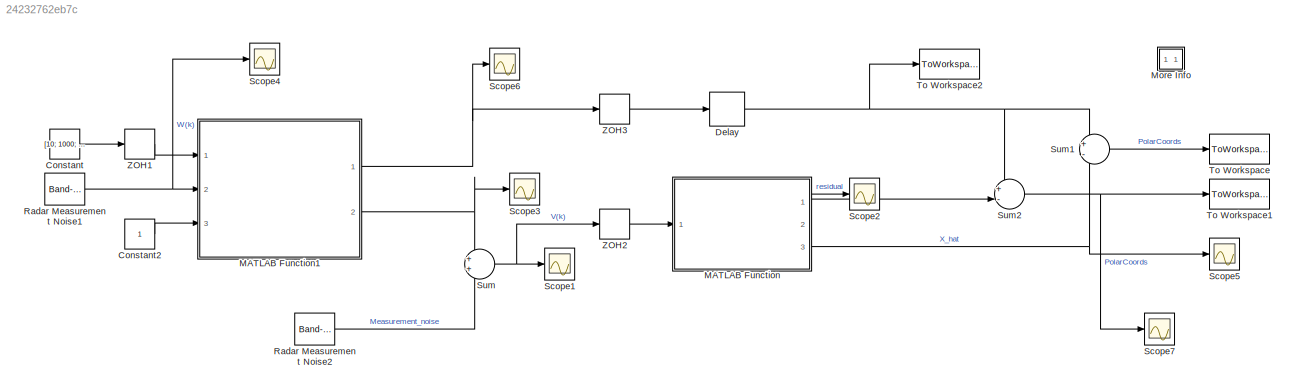
MODEL slx_24232762eb7c
KIND model
CONFIG AbsTol = 1e-6
CONFIG EnableMultiTasking = off
CONFIG FixedStep = 0.1
CONFIG MaxStep = 0.1
CONFIG MinStep = auto
CONFIG RelTol = 1e-3
CONFIG SampleTimeConstraint = Unconstrained
CONFIG Solver = ode5
CONFIG SolverName = ode5
CONFIG StartFcn = clear radarLogsOut
CONFIG StartTime = 0.0
CONFIG StopFcn = aero_radplot;
CONFIG StopTime = 1800
WORKSPACE source: MATLAB code (in-file)
WORKSPACE g = 32.2
WORKSPACE tauc = 5
WORKSPACE tauT = 4
WORKSPACE Speed = 400
WORKSPACE deltat = 1
BLOCK [Constant] Constant
  SampleTime = deltat
  Value = [10; 1000; 0; 10; 0.2; 15; 0; 0]
BLOCK [Constant] Constant2
  SampleTime = 0.1
BLOCK [Delay] Delay
  DelayLength = 1
  InitialCondition = 0
  InputPortMap = u0
  Ports = [1, 1]
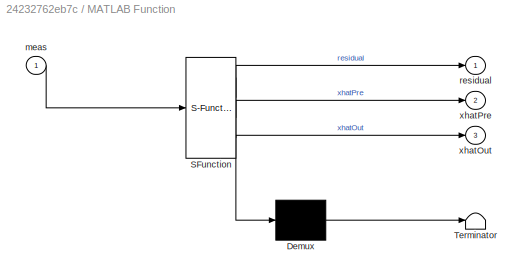
BLOCK [SubSystem] MATLAB Function
  ErrorFcn = Stateflow.Translate.translate
  PermitHierarchicalResolution = ExplicitOnly
  Ports = [1, 3]
  RequestExecContextInheritance = off
  SFBlockType = MATLAB Function
  TreatAsAtomicUnit = on
BLOCK [Demux] MATLAB Function/ Demux 
  Outputs = 1
  Ports = [1, 1]
BLOCK [S-Function] MATLAB Function/ SFunction 
  EnableBusSupport = on
  FunctionName = sf_sfun
  PortCounts = [1 4]
  Ports = [1, 4]
  SFcnIsStateOwnerBlock = off
  SFunctionDeploymentMode = off
  Tag = Stateflow S-Function ekf6_grp5 2
BLOCK [Terminator] MATLAB Function/ Terminator 
BLOCK [Inport] MATLAB Function/meas
  IconDisplay = Port number
BLOCK [Outport] MATLAB Function/residual
  IconDisplay = Port number
BLOCK [Outport] MATLAB Function/xhatOut
  IconDisplay = Port number
  Port = 3
BLOCK [Outport] MATLAB Function/xhatPre
  IconDisplay = Port number
  Port = 2
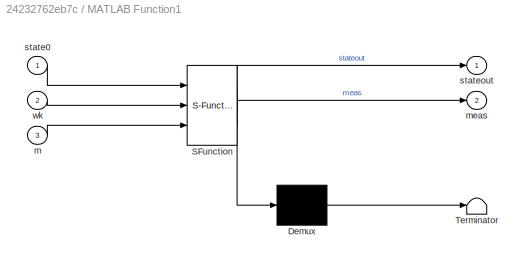
BLOCK [SubSystem] MATLAB Function1
  ErrorFcn = Stateflow.Translate.translate
  PermitHierarchicalResolution = ExplicitOnly
  Ports = [3, 2]
  RequestExecContextInheritance = off
  SFBlockType = MATLAB Function
  TreatAsAtomicUnit = on
BLOCK [Demux] MATLAB Function1/ Demux 
  Outputs = 1
  Ports = [1, 1]
BLOCK [S-Function] MATLAB Function1/ SFunction 
  EnableBusSupport = on
  FunctionName = sf_sfun
  PortCounts = [3 3]
  Ports = [3, 3]
  SFcnIsStateOwnerBlock = off
  SFunctionDeploymentMode = off
  Tag = Stateflow S-Function ekf6_grp5 1
BLOCK [Terminator] MATLAB Function1/ Terminator 
BLOCK [Inport] MATLAB Function1/m
  IconDisplay = Port number
  Port = 3
BLOCK [Outport] MATLAB Function1/meas
  IconDisplay = Port number
  Port = 2
BLOCK [Inport] MATLAB Function1/state0
  IconDisplay = Port number
BLOCK [Outport] MATLAB Function1/stateout
  IconDisplay = Port number
BLOCK [Inport] MATLAB Function1/wk
  IconDisplay = Port number
  Port = 2
BLOCK [SubSystem] More Info
  OpenFcn = showdemo(bdroot(gcs))
  Ports = []
  RequestExecContextInheritance = off
BLOCK [Reference] Radar Measurement Noise1  REF=simulink/Sources/Band-Limited
White Noise
  Ports = [0, 1]
  SourceBlock = simulink/Sources/Band-Limited\nWhite Noise
  SourceProductBaseCode = SL
  SourceProductName = Simulink
  SourceType = Band-Limited White Noise.
BLOCK [Reference] Radar Measurement Noise2  REF=simulink/Sources/Band-Limited
White Noise
  Ports = [0, 1]
  SourceBlock = simulink/Sources/Band-Limited\nWhite Noise
  SourceProductBaseCode = SL
  SourceProductName = Simulink
  SourceType = Band-Limited White Noise.
BLOCK [Scope] Scope1
  Floating = off
  NumInputPorts = 1
  Ports = [1]
  ScopeSpecificationString = Simulink.scopes.TimeScopeBlockCfg('CurrentConfiguration', extmgr.ConfigurationSet(extmgr.Configuration('Core','General UI',true),extmgr.Configuration('Core','Source UI',true),extmgr.Configuration('Sources','WiredSimulink',true,'DataLoggingVariableName','ScopeData1'),extmgr.Configuration('Visuals','Time Domain',true,'SerializedDisplays',{struct('MinYLimReal','-265.27779','MaxYLimReal','1447.96767',...<+1463ch>
BLOCK [Scope] Scope2
  Floating = off
  NumInputPorts = 1
  Ports = [1]
  ScopeSpecificationString = Simulink.scopes.TimeScopeBlockCfg('CurrentConfiguration', extmgr.ConfigurationSet(extmgr.Configuration('Core','General UI',true),extmgr.Configuration('Core','Source UI',true),extmgr.Configuration('Sources','WiredSimulink',true,'DataLoggingVariableName','ScopeData2'),extmgr.Configuration('Visuals','Time Domain',true,'SerializedDisplays',{struct('MinYLimReal','-63762735251023099031539679232.00000','...<+1654ch>
BLOCK [Scope] Scope3
  Floating = off
  NumInputPorts = 1
  Ports = [1]
  ScopeSpecificationString = Simulink.scopes.TimeScopeBlockCfg('CurrentConfiguration', extmgr.ConfigurationSet(extmgr.Configuration('Core','General UI',true),extmgr.Configuration('Core','Source UI',true),extmgr.Configuration('Sources','WiredSimulink',true,'DataLoggingVariableName','ScopeData3'),extmgr.Configuration('Visuals','Time Domain',true,'SerializedDisplays',{struct('MinYLimReal','-128.43221','MaxYLimReal','1155.88988',...<+1426ch>
BLOCK [Scope] Scope4
  Floating = off
  NumInputPorts = 1
  Ports = [1]
  ScopeSpecificationString = Simulink.scopes.TimeScopeBlockCfg('CurrentConfiguration', extmgr.ConfigurationSet(extmgr.Configuration('Core','General UI',true),extmgr.Configuration('Core','Source UI',true),extmgr.Configuration('Sources','WiredSimulink',true,'DataLoggingVariableName','ScopeData1'),extmgr.Configuration('Visuals','Time Domain',true,'SerializedDisplays',{struct('MinYLimReal','-57.73587','MaxYLimReal','58.68893','YL...<+1534ch>
BLOCK [Scope] Scope5
  Floating = off
  NumInputPorts = 1
  Ports = [1]
  ScopeSpecificationString = Simulink.scopes.TimeScopeBlockCfg('CurrentConfiguration', extmgr.ConfigurationSet(extmgr.Configuration('Core','General UI',true),extmgr.Configuration('Core','Source UI',true),extmgr.Configuration('Sources','WiredSimulink',true,'DataLoggingVariableName','ScopeData2'),extmgr.Configuration('Visuals','Time Domain',true,'SerializedDisplays',{struct('MinYLimReal','-3401.99622','MaxYLimReal','3535.14774'...<+1556ch>
BLOCK [Scope] Scope6
  Floating = off
  NumInputPorts = 1
  Ports = [1]
  ScopeSpecificationString = Simulink.scopes.TimeScopeBlockCfg('CurrentConfiguration', extmgr.ConfigurationSet(extmgr.Configuration('Core','General UI',true),extmgr.Configuration('Core','Source UI',true),extmgr.Configuration('Sources','WiredSimulink',true,'DataLoggingVariableName','ScopeData1'),extmgr.Configuration('Visuals','Time Domain',true,'SerializedDisplays',{struct('MinYLimReal','-250.6883','MaxYLimReal','1435.18853','...<+1683ch>
BLOCK [Scope] Scope7
  Floating = off
  NumInputPorts = 1
  Ports = [1]
  ScopeSpecificationString = Simulink.scopes.TimeScopeBlockCfg('CurrentConfiguration', extmgr.ConfigurationSet(extmgr.Configuration('Core','General UI',true),extmgr.Configuration('Core','Source UI',true),extmgr.Configuration('Sources','WiredSimulink',true,'DataLoggingVariableName','ScopeData1'),extmgr.Configuration('Visuals','Time Domain',true,'SerializedDisplays',{struct('MinYLimReal','-8443348301.43924','MaxYLimReal','67440...<+1658ch>
BLOCK [Sum] Sum
  IconShape = round
  Inputs = 2
  Ports = [2, 1]
BLOCK [Sum] Sum1
  IconShape = round
  Inputs = +-
  Ports = [2, 1]
BLOCK [Sum] Sum2
  IconShape = round
  Inputs = +-
  Ports = [2, 1]
BLOCK [ToWorkspace] To Workspace
  FixptAsFi = on
  MaxDataPoints = inf
  Ports = [1]
  SampleTime = -1
  VariableName = sterr_pre
BLOCK [ToWorkspace] To Workspace1
  FixptAsFi = on
  MaxDataPoints = inf
  Ports = [1]
  SampleTime = -1
  VariableName = sterr_post_grp5
BLOCK [ToWorkspace] To Workspace2
  FixptAsFi = on
  MaxDataPoints = inf
  Ports = [1]
  SampleTime = -1
  VariableName = state
BLOCK [ZeroOrderHold] ZOH1
  SampleTime = 0.1
BLOCK [ZeroOrderHold] ZOH2
  SampleTime = 0.5
BLOCK [ZeroOrderHold] ZOH3
  SampleTime = 0.5
LINE Constant2:1 -> MATLAB Function1:3
LINE Constant:1 -> ZOH1:1
NET Delay:1 -> Sum1:1, Sum2:1, To Workspace2:1
NET MATLAB Function1:1 -> Scope6:1, ZOH3:1
NET MATLAB Function1:2 -> Scope3:1, Sum:1
LINE MATLAB Function:1 -> Scope2:1
LINE MATLAB Function:2 -> Sum2:2
NET MATLAB Function:3 -> Scope5:1, Sum1:2
NET Radar Measurement Noise1:1 -> MATLAB Function1:2, Scope4:1
LINE Radar Measurement Noise2:1 -> Sum:2
LINE Sum1:1 -> To Workspace:1
NET Sum2:1 -> Scope7:1, To Workspace1:1
NET Sum:1 -> Scope1:1, ZOH2:1
LINE ZOH1:1 -> MATLAB Function1:1
LINE ZOH2:1 -> MATLAB Function:1
LINE ZOH3:1 -> Delay:1
note: NET lines group one-source signal fan-out (src -> all destinations, sorted); 1:1 wires keep LINE
CHART MATLAB Function1 states=1 transitions=1
  STATE_LABEL 'eML_blk_kernel()'
  STATE_LABEL 'SCRIPT:\nfunction [stateout, meas]  = Envrionment(state0, wk, m)\n%EXTKALMAN Radar Data Processing Tracker Using an Extended Kalman Filter\n%\n%  This program is executed as a MATLAB function block in the \n%  sldemo_radar Simulink model.  The estimated and actual positions are \n%  saved to the workspace and are plotted at the end of the simulation by \n%  the program aero_radplot (called from the simul...<+1176ch>'
CHART MATLAB Function states=1 transitions=1
  STATE_LABEL 'eML_blk_kernel()'
  STATE_LABEL 'SCRIPT:\nfunction [residual, xhatPre ,xhatOut] = EXTKALMAN(meas)\n%EXTKALMAN Radar Data Processing Tracker Using an Extended Kalman Filter\n%\n%  This program is executed as a MATLAB function block in the \n%  sldemo_radar Simulink model.  The estimated and actual positions are \n%  saved to the workspace and are plotted at the end of the simulation by \n%  the program aero_radplot (called from the simul...<+1782ch>'
